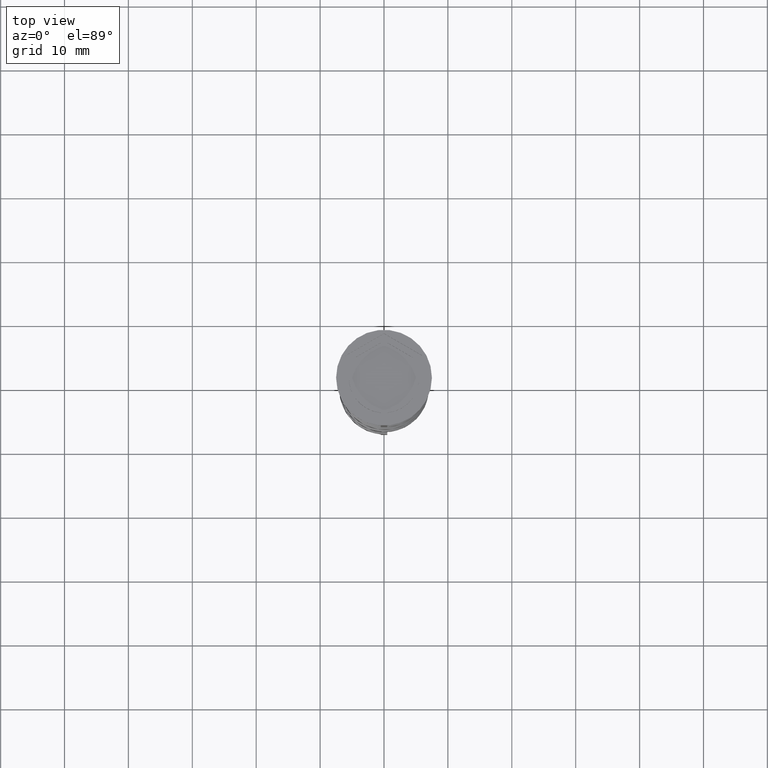
[diagram: clean part render]
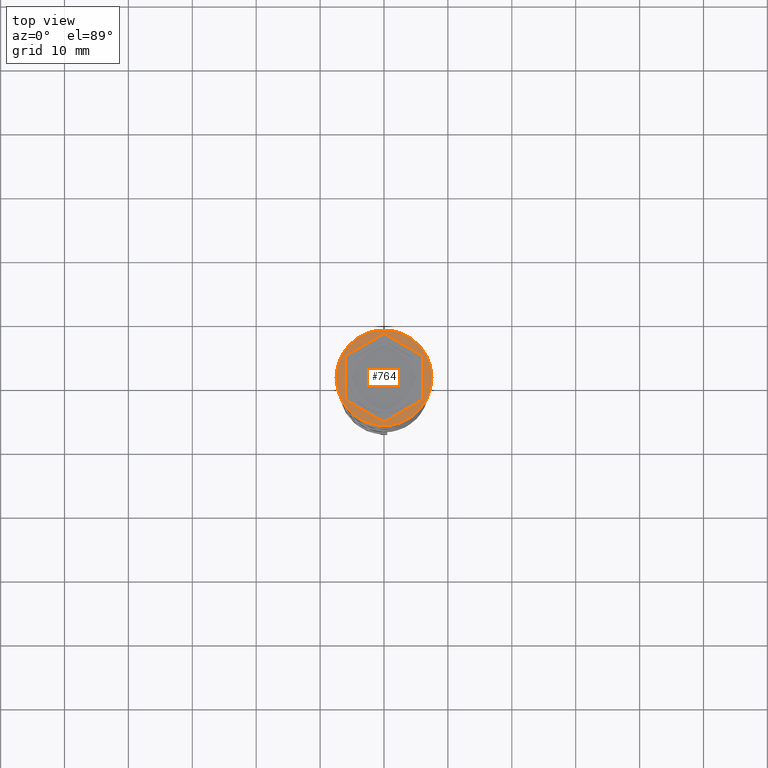
[diagram: same view with one face highlighted and labeled with its STEP entity id]
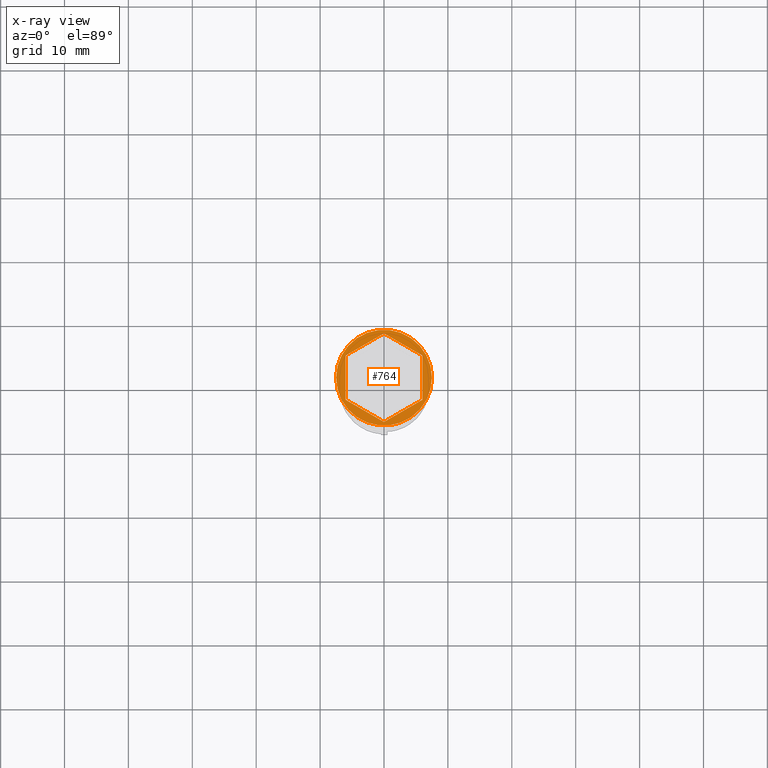
[diagram: x-ray of the same camera — body ghosted, the highlighted face saturated]
A machine part, top view. The second image highlights one B-rep face of the part: STEP entity #764.
The next image is the same camera in x-ray: the body ghosted, the highlighted face saturated — about 0% of this face is hidden behind the body in this view.
In plain terms, the highlighted planar face has unit normal (0, -0, 1).
Its self-contained STEP definition (entity closure, byte-faithful):
#59 = CARTESIAN_POINT ( 'NONE',  ( -6.000000000000000000, 3.464101615137752166, 0.000000000000000000 ) ) ;
#101 = CARTESIAN_POINT ( 'NONE',  ( 0.000000000000000000, 0.000000000000000000, 0.000000000000000000 ) ) ;
#131 = VECTOR ( 'NONE', #217, 1000.000000000000227 ) ;
#147 = DIRECTION ( 'NONE',  ( -0.000000000000000000, -0.000000000000000000, 1.000000000000000000 ) ) ;
#176 = VERTEX_POINT ( 'NONE', #2045 ) ;
#184 = CARTESIAN_POINT ( 'NONE',  ( -6.000000000000000000, -3.464101615137755719, 0.000000000000000000 ) ) ;
#201 = VECTOR ( 'NONE', #3174, 1000.000000000000000 ) ;
#217 = DIRECTION ( 'NONE',  ( 0.8660254037844385966, 0.5000000000000000000, 0.000000000000000000 ) ) ;
#249 = VECTOR ( 'NONE', #1059, 1000.000000000000114 ) ;
#257 = CIRCLE ( 'NONE', #1114, 7.500000000000000000 ) ;
#337 = ORIENTED_EDGE ( 'NONE', *, *, #1978, .T. ) ;
#379 = CARTESIAN_POINT ( 'NONE',  ( 0.000000000000000000, 0.000000000000000000, 0.000000000000000000 ) ) ;
#410 = DIRECTION ( 'NONE',  ( -0.8660254037844387076, 0.4999999999999998335, 0.000000000000000000 ) ) ;
#425 = VERTEX_POINT ( 'NONE', #2435 ) ;
#539 = VECTOR ( 'NONE', #410, 1000.000000000000000 ) ;
#633 = DIRECTION ( 'NONE',  ( -0.8660254037844385966, -0.4999999999999998890, 0.000000000000000000 ) ) ;
#670 = LINE ( 'NONE', #1204, #1929 ) ;
#702 = EDGE_CURVE ( 'NONE', #425, #2047, #257, .T. ) ;
#733 = CARTESIAN_POINT ( 'NONE',  ( 0.000000000000000000, 0.000000000000000000, 0.000000000000000000 ) ) ;
#735 = VERTEX_POINT ( 'NONE', #1267 ) ;
#764 = ADVANCED_FACE ( 'NONE', ( #2055, #1545 ), #2296, .T. ) ;
#773 = CARTESIAN_POINT ( 'NONE',  ( -4.280685092543093048E-16, -6.928203230275507885, 0.000000000000000000 ) ) ;
#846 = CARTESIAN_POINT ( 'NONE',  ( -4.280685092543093048E-16, -6.928203230275507885, 0.000000000000000000 ) ) ;
#1001 = DIRECTION ( 'NONE',  ( -0.000000000000000000, -0.000000000000000000, 1.000000000000000000 ) ) ;
#1014 = VERTEX_POINT ( 'NONE', #184 ) ;
#1059 = DIRECTION ( 'NONE',  ( 0.8660254037844388186, -0.4999999999999997224, 0.000000000000000000 ) ) ;
#1076 = CARTESIAN_POINT ( 'NONE',  ( -6.000000000000000000, -3.464101615137755719, 0.000000000000000000 ) ) ;
#1114 = AXIS2_PLACEMENT_3D ( 'NONE', #101, #147, #1251 ) ;
#1201 = EDGE_CURVE ( 'NONE', #2602, #735, #670, .T. ) ;
#1204 = CARTESIAN_POINT ( 'NONE',  ( 5.999999999999998224, -3.464101615137753942, 0.000000000000000000 ) ) ;
#1220 = ORIENTED_EDGE ( 'NONE', *, *, #1201, .F. ) ;
#1227 = DIRECTION ( 'NONE',  ( 1.000000000000000000, 0.000000000000000000, 0.000000000000000000 ) ) ;
#1248 = CARTESIAN_POINT ( 'NONE',  ( 6.000000000000000000, 3.464101615137753942, 0.000000000000000000 ) ) ;
#1251 = DIRECTION ( 'NONE',  ( 1.000000000000000000, 0.000000000000000000, 0.000000000000000000 ) ) ;
#1267 = CARTESIAN_POINT ( 'NONE',  ( 6.000000000000000000, 3.464101615137753942, 0.000000000000000000 ) ) ;
#1275 = EDGE_CURVE ( 'NONE', #1014, #1537, #1905, .T. ) ;
#1302 = EDGE_CURVE ( 'NONE', #1537, #2602, #1870, .T. ) ;
#1356 = VERTEX_POINT ( 'NONE', #2998 ) ;
#1537 = VERTEX_POINT ( 'NONE', #846 ) ;
#1545 = FACE_OUTER_BOUND ( 'NONE', #2106, .T. ) ;
#1755 = CARTESIAN_POINT ( 'NONE',  ( 0.000000000000000000, 6.928203230275506996, 0.000000000000000000 ) ) ;
#1841 = EDGE_CURVE ( 'NONE', #735, #176, #3462, .T. ) ;
#1845 = DIRECTION ( 'NONE',  ( 1.000000000000000000, 0.000000000000000000, 0.000000000000000000 ) ) ;
#1870 = LINE ( 'NONE', #773, #131 ) ;
#1899 = ORIENTED_EDGE ( 'NONE', *, *, #2366, .F. ) ;
#1905 = LINE ( 'NONE', #1076, #249 ) ;
#1929 = VECTOR ( 'NONE', #3436, 1000.000000000000000 ) ;
#1931 = CIRCLE ( 'NONE', #2859, 7.500000000000000000 ) ;
#1937 = VECTOR ( 'NONE', #633, 1000.000000000000227 ) ;
#1978 = EDGE_CURVE ( 'NONE', #2047, #425, #1931, .T. ) ;
#2045 = CARTESIAN_POINT ( 'NONE',  ( 0.000000000000000000, 6.928203230275506996, 0.000000000000000000 ) ) ;
#2047 = VERTEX_POINT ( 'NONE', #3482 ) ;
#2055 = FACE_BOUND ( 'NONE', #2645, .T. ) ;
#2106 = EDGE_LOOP ( 'NONE', ( #3231, #337 ) ) ;
#2124 = ORIENTED_EDGE ( 'NONE', *, *, #1302, .F. ) ;
#2148 = CARTESIAN_POINT ( 'NONE',  ( 5.999999999999998224, -3.464101615137753942, 0.000000000000000000 ) ) ;
#2277 = AXIS2_PLACEMENT_3D ( 'NONE', #379, #2638, #1227 ) ;
#2296 = PLANE ( 'NONE',  #2277 ) ;
#2300 = ORIENTED_EDGE ( 'NONE', *, *, #2847, .F. ) ;
#2366 = EDGE_CURVE ( 'NONE', #1356, #1014, #3404, .T. ) ;
#2435 = CARTESIAN_POINT ( 'NONE',  ( 7.500000000000000000, 0.000000000000000000, 0.000000000000000000 ) ) ;
#2596 = LINE ( 'NONE', #1755, #1937 ) ;
#2602 = VERTEX_POINT ( 'NONE', #2148 ) ;
#2638 = DIRECTION ( 'NONE',  ( 0.000000000000000000, -0.000000000000000000, 1.000000000000000000 ) ) ;
#2645 = EDGE_LOOP ( 'NONE', ( #3186, #1220, #2124, #3203, #1899, #2300 ) ) ;
#2847 = EDGE_CURVE ( 'NONE', #176, #1356, #2596, .T. ) ;
#2859 = AXIS2_PLACEMENT_3D ( 'NONE', #733, #1001, #1845 ) ;
#2998 = CARTESIAN_POINT ( 'NONE',  ( -6.000000000000000000, 3.464101615137752166, 0.000000000000000000 ) ) ;
#3174 = DIRECTION ( 'NONE',  ( 0.000000000000000000, -1.000000000000000000, 0.000000000000000000 ) ) ;
#3186 = ORIENTED_EDGE ( 'NONE', *, *, #1841, .F. ) ;
#3203 = ORIENTED_EDGE ( 'NONE', *, *, #1275, .F. ) ;
#3231 = ORIENTED_EDGE ( 'NONE', *, *, #702, .T. ) ;
#3404 = LINE ( 'NONE', #59, #201 ) ;
#3436 = DIRECTION ( 'NONE',  ( 2.503857664561932376E-16, 1.000000000000000000, 0.000000000000000000 ) ) ;
#3462 = LINE ( 'NONE', #1248, #539 ) ;
#3482 = CARTESIAN_POINT ( 'NONE',  ( -7.500000000000000000, 9.184850993605147944E-16, 0.000000000000000000 ) ) ;